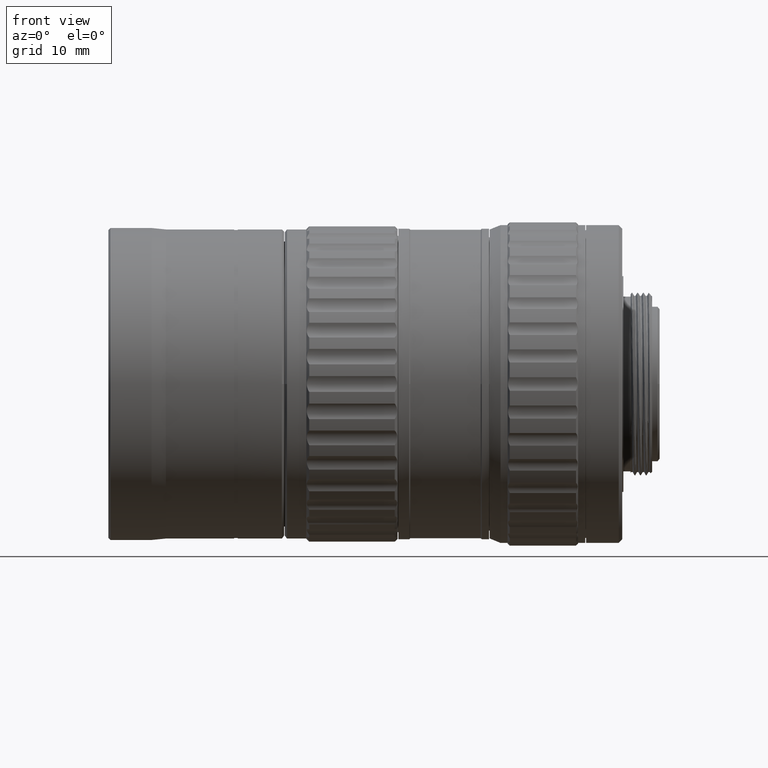
[diagram: clean part render]
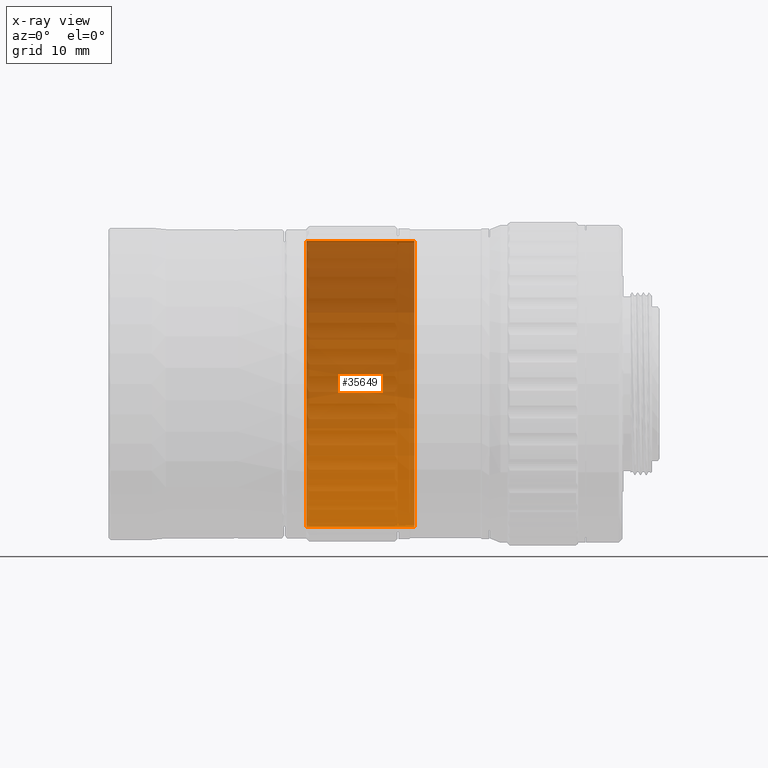
[diagram: x-ray — body ghosted, one internal face saturated and labeled with its STEP entity id]
A machine part, front view, then the same camera in x-ray: the body is ghosted and one INTERNAL B-rep face — a face not visible from any outside direction — is saturated and labeled: STEP entity #35649.
In plain terms, the highlighted cylindrical surface (partial cylindrical patch) has radius 19.9 mm, axis along (-1, -0, 0).
Its self-contained STEP definition (entity closure, byte-faithful):
#17 = EDGE_LOOP ( 'NONE', ( #35951, #10765, #5832, #38308 ) ) ;
#279 = CARTESIAN_POINT ( 'NONE',  ( 34.07999999999951513, 19.87485849006196759, 1.000000000005756506 ) ) ;
#828 = CARTESIAN_POINT ( 'NONE',  ( 33.57615777090501297, 19.88087463263765287, 0.8736982405669712071 ) ) ;
#1427 = VERTEX_POINT ( 'NONE', #32436 ) ;
#1892 = CARTESIAN_POINT ( 'NONE',  ( 27.58000000000047791, 2.437047130303232761E-15, -19.89999999999999858 ) ) ;
#1913 = AXIS2_PLACEMENT_3D ( 'NONE', #51493, #17183, #47752 ) ;
#3448 = CYLINDRICAL_SURFACE ( 'NONE', #1913, 19.89999999999999858 ) ;
#4332 = CARTESIAN_POINT ( 'NONE',  ( 33.28053002827802231, 19.89071782960972001, -0.6147100055370846583 ) ) ;
#5158 = CARTESIAN_POINT ( 'NONE',  ( 33.57592698489703764, 19.88088096301772367, -0.8735550399966074409 ) ) ;
#5832 = ORIENTED_EDGE ( 'NONE', *, *, #47292, .T. ) ;
#6435 = CARTESIAN_POINT ( 'NONE',  ( 35.07989089044889397, 19.89999451710983891, 0.1327510664725645995 ) ) ;
#7156 = DIRECTION ( 'NONE',  ( 0.000000000000000000, 0.000000000000000000, 1.000000000000000000 ) ) ;
#9991 = ORIENTED_EDGE ( 'NONE', *, *, #31703, .T. ) ;
#10162 = CARTESIAN_POINT ( 'NONE',  ( 34.69435671834646939, 19.88413775245012616, 0.7997271399779539713 ) ) ;
#10183 = B_SPLINE_CURVE_WITH_KNOTS ( 'NONE', 3,
 ( #27593, #37591, #37015, #36438, #10162, #19035, #53919, #11009, #6435, #14729, #10453, #15305, #41875, #19302, #32444, #32728 ),
 .UNSPECIFIED., .F., .F.,
 ( 4, 2, 2, 2, 2, 2, 2, 4 ),
 ( 0.003126948678602457267, 0.003517728178385304272, 0.003908507678168151277, 0.004299287177950998282, 0.004690066677733845286, 0.005080846177516692291, 0.005471625677299539296, 0.006253184676865248051 ),
 .UNSPECIFIED. ) ;
#10342 = VERTEX_POINT ( 'NONE', #21003 ) ;
#10344 = CARTESIAN_POINT ( 'NONE',  ( 42.59999999999999432, 0.000000000000000000, 19.89999999999999858 ) ) ;
#10453 = CARTESIAN_POINT ( 'NONE',  ( 35.05423775854695378, 19.89865898990844784, -0.2609209792326688815 ) ) ;
#10556 = EDGE_CURVE ( 'NONE', #31787, #37312, #26293, .T. ) ;
#10736 = CARTESIAN_POINT ( 'NONE',  ( 42.59999999999999432, 2.437047130303232761E-15, -19.89999999999999858 ) ) ;
#10765 = ORIENTED_EDGE ( 'NONE', *, *, #10556, .T. ) ;
#11009 = CARTESIAN_POINT ( 'NONE',  ( 35.05373660173674466, 19.89863427091603043, 0.2626452611692754457 ) ) ;
#11762 = CARTESIAN_POINT ( 'NONE',  ( 27.58000000000047791, 0.000000000000000000, 0.000000000000000000 ) ) ;
#13666 = DIRECTION ( 'NONE',  ( -1.000000000000000000, -0.000000000000000000, 0.000000000000000000 ) ) ;
#14012 = CARTESIAN_POINT ( 'NONE',  ( 33.94945901141843336, 19.87485849006226957, 0.9999999999998664402 ) ) ;
#14729 = CARTESIAN_POINT ( 'NONE',  ( 35.08010842979874866, 19.90000544873175770, -0.1311021246882666524 ) ) ;
#15305 = CARTESIAN_POINT ( 'NONE',  ( 34.95393743291833744, 19.89400052837893895, -0.5034404939279903957 ) ) ;
#15501 = VERTEX_POINT ( 'NONE', #1892 ) ;
#15704 = AXIS2_PLACEMENT_3D ( 'NONE', #11762, #45755, #54663 ) ;
#17183 = DIRECTION ( 'NONE',  ( -1.000000000000000000, -0.000000000000000000, 0.000000000000000000 ) ) ;
#17482 = CARTESIAN_POINT ( 'NONE',  ( 33.20603241635620861, 19.89400256712932347, -0.5031401093058792684 ) ) ;
#18307 = CARTESIAN_POINT ( 'NONE',  ( 33.10630163394471737, 19.89863330261016827, -0.2624515170345860238 ) ) ;
#18513 = EDGE_CURVE ( 'NONE', #10342, #49999, #41672, .T. ) ;
#19035 = CARTESIAN_POINT ( 'NONE',  ( 34.87886431291317280, 19.89069340599973046, 0.6154782574133151885 ) ) ;
#19038 = EDGE_LOOP ( 'NONE', ( #30651, #9991 ) ) ;
#19302 = CARTESIAN_POINT ( 'NONE',  ( 34.60316782289750392, 19.88088856383301817, -0.8913062428487961153 ) ) ;
#19607 = CARTESIAN_POINT ( 'NONE',  ( 42.59999999999999432, 0.000000000000000000, 19.89999999999999858 ) ) ;
#20701 = EDGE_CURVE ( 'NONE', #31787, #15501, #48548, .T. ) ;
#21003 = CARTESIAN_POINT ( 'NONE',  ( 34.07999999999999829, 19.87485849006225891, -1.000000000000024647 ) ) ;
#22615 = CARTESIAN_POINT ( 'NONE',  ( 33.10586311594472875, 19.89865418620969706, 0.2612072205861125651 ) ) ;
#23887 = LINE ( 'NONE', #19607, #39774 ) ;
#25736 = CIRCLE ( 'NONE', #15704, 19.89999999999999858 ) ;
#26293 = CIRCLE ( 'NONE', #38177, 19.89999999999999858 ) ;
#26326 = CARTESIAN_POINT ( 'NONE',  ( 33.81853165694015928, 19.87620901634057446, 0.9740841405991386148 ) ) ;
#27448 = CARTESIAN_POINT ( 'NONE',  ( 33.46499918214747282, 19.88415775303113264, -0.7992462828398231300 ) ) ;
#27593 = CARTESIAN_POINT ( 'NONE',  ( 34.07999999999951513, 19.87485849006196759, 1.000000000005756506 ) ) ;
#28678 = VECTOR ( 'NONE', #13666, 1000.000000000000000 ) ;
#29467 = FACE_OUTER_BOUND ( 'NONE', #17, .T. ) ;
#30651 = ORIENTED_EDGE ( 'NONE', *, *, #18513, .T. ) ;
#31703 = EDGE_CURVE ( 'NONE', #49999, #10342, #10183, .T. ) ;
#31787 = VERTEX_POINT ( 'NONE', #10736 ) ;
#32436 = CARTESIAN_POINT ( 'NONE',  ( 27.58000000000047791, 0.000000000000000000, 19.89999999999999858 ) ) ;
#32444 = CARTESIAN_POINT ( 'NONE',  ( 34.34427384520637361, 19.87485849006224825, -1.000000000000024425 ) ) ;
#32728 = CARTESIAN_POINT ( 'NONE',  ( 34.07999999999999829, 19.87485849006225891, -1.000000000000024647 ) ) ;
#34564 = CARTESIAN_POINT ( 'NONE',  ( 42.59999999999999432, 0.000000000000000000, 0.000000000000000000 ) ) ;
#34899 = CARTESIAN_POINT ( 'NONE',  ( 33.20605612321350009, 19.89400094634702754, 0.5033825396163478239 ) ) ;
#35174 = CARTESIAN_POINT ( 'NONE',  ( 33.07995355434906770, 19.90000233395215545, 0.1301135576116544124 ) ) ;
#35451 = CARTESIAN_POINT ( 'NONE',  ( 33.08004657272470439, 19.89999765966222611, -0.1308265057769978090 ) ) ;
#35649 = ADVANCED_FACE ( 'NONE', ( #29467, #46910 ), #3448, .F. ) ;
#35951 = ORIENTED_EDGE ( 'NONE', *, *, #20701, .F. ) ;
#36438 = CARTESIAN_POINT ( 'NONE',  ( 34.58275030438000641, 19.88085209219069682, 0.8741888458379959426 ) ) ;
#36508 = CARTESIAN_POINT ( 'NONE',  ( 42.59999999999999432, 2.437047130303232761E-15, -19.89999999999999858 ) ) ;
#36546 = EDGE_CURVE ( 'NONE', #15501, #1427, #25736, .T. ) ;
#37015 = CARTESIAN_POINT ( 'NONE',  ( 34.34205699973687587, 19.87622187223014691, 0.9738018975287840995 ) ) ;
#37038 = DIRECTION ( 'NONE',  ( -1.000000000000000000, -0.000000000000000000, 0.000000000000000000 ) ) ;
#37312 = VERTEX_POINT ( 'NONE', #10344 ) ;
#37591 = CARTESIAN_POINT ( 'NONE',  ( 34.21051123625400692, 19.87485849006225891, 1.000000000000087930 ) ) ;
#38177 = AXIS2_PLACEMENT_3D ( 'NONE', #34564, #46602, #7156 ) ;
#38308 = ORIENTED_EDGE ( 'NONE', *, *, #36546, .F. ) ;
#39459 = CARTESIAN_POINT ( 'NONE',  ( 33.46607367327725058, 19.88411940732303407, 0.8003287585623450884 ) ) ;
#39774 = VECTOR ( 'NONE', #37038, 1000.000000000000000 ) ;
#41672 = B_SPLINE_CURVE_WITH_KNOTS ( 'NONE', 3,
 ( #56676, #44305, #52921, #5158, #27448, #4332, #17482, #18307, #35451, #35174, #22615, #34899, #52379, #39459, #828, #26326, #14012, #279 ),
 .UNSPECIFIED., .F., .F.,
 ( 4, 2, 2, 2, 2, 2, 2, 2, 4 ),
 ( 0.000000000000000000, 0.0003908685848253072668, 0.0007817371696506145336, 0.001172605754475921800, 0.001563474339301228633, 0.001954342924126535683, 0.002345211508951842733, 0.002736080093777150217, 0.003126948678602457267 ),
 .UNSPECIFIED. ) ;
#41875 = CARTESIAN_POINT ( 'NONE',  ( 34.87982552594070995, 19.89073219494707345, -0.6142572550795174502 ) ) ;
#44305 = CARTESIAN_POINT ( 'NONE',  ( 33.94783295446718796, 19.87485849006225536, -1.000000000000024869 ) ) ;
#45755 = DIRECTION ( 'NONE',  ( 1.000000000000000000, 0.000000000000000000, -0.000000000000000000 ) ) ;
#46602 = DIRECTION ( 'NONE',  ( 1.000000000000000000, 0.000000000000000000, -0.000000000000000000 ) ) ;
#46910 = FACE_BOUND ( 'NONE', #19038, .T. ) ;
#47292 = EDGE_CURVE ( 'NONE', #37312, #1427, #23887, .T. ) ;
#47752 = DIRECTION ( 'NONE',  ( 0.000000000000000000, 0.000000000000000000, 1.000000000000000000 ) ) ;
#48548 = LINE ( 'NONE', #36508, #28678 ) ;
#49999 = VERTEX_POINT ( 'NONE', #56385 ) ;
#51493 = CARTESIAN_POINT ( 'NONE',  ( 42.59999999999999432, 0.000000000000000000, 0.000000000000000000 ) ) ;
#52379 = CARTESIAN_POINT ( 'NONE',  ( 33.27939803564282073, 19.89075822022304507, 0.6135700050464130140 ) ) ;
#52921 = CARTESIAN_POINT ( 'NONE',  ( 33.81814327326591041, 19.87621460958956376, -0.9739707732383866556 ) ) ;
#53919 = CARTESIAN_POINT ( 'NONE',  ( 34.95328648170377761, 19.89397175420831942, 0.5044960095480518492 ) ) ;
#54663 = DIRECTION ( 'NONE',  ( 0.000000000000000000, 0.000000000000000000, 1.000000000000000000 ) ) ;
#56385 = CARTESIAN_POINT ( 'NONE',  ( 34.07999999999951513, 19.87485849006196759, 1.000000000005756506 ) ) ;
#56676 = CARTESIAN_POINT ( 'NONE',  ( 34.07999999999999829, 19.87485849006225891, -1.000000000000024647 ) ) ;